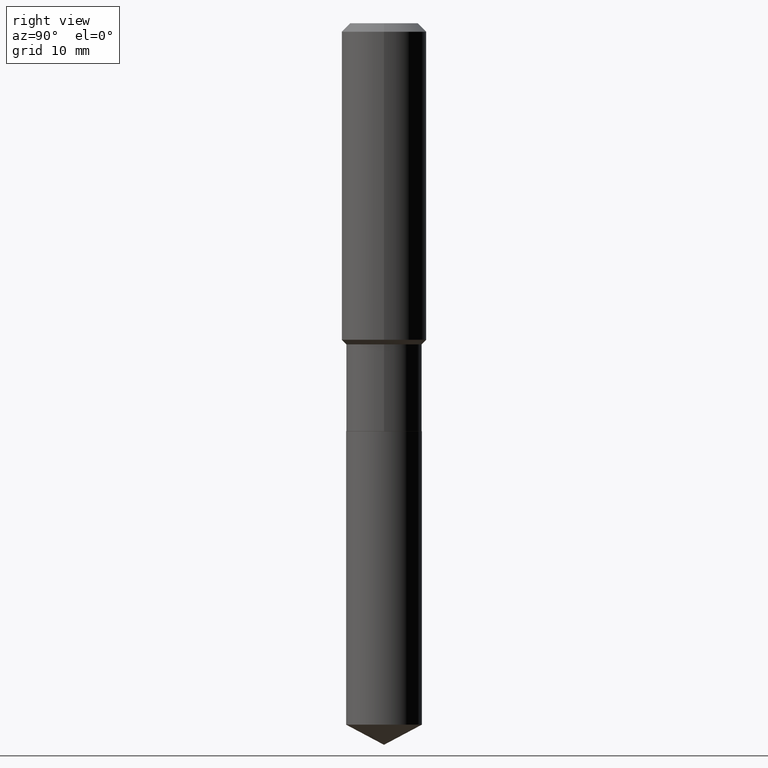
[diagram: clean part render]
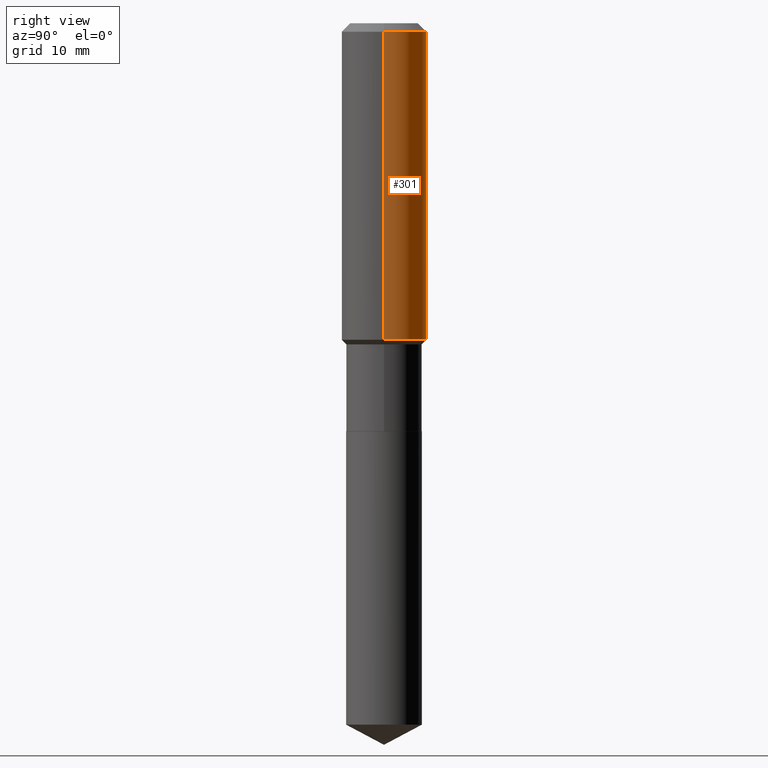
[diagram: same view with one face highlighted and labeled with its STEP entity id]
A machine part, right view. The second image highlights one B-rep face of the part: STEP entity #301.
In plain terms, the highlighted cylindrical surface (partial cylindrical patch) has radius 5.9995 mm, axis along (-0, 0, 1).
Its self-contained STEP definition (entity closure, byte-faithful):
#4 = CARTESIAN_POINT ( 'NONE',  ( 0.2362000000000001043, -1.649375784469496920E-15, 1.151752954443000508E-29 ) ) ;
#14 = ORIENTED_EDGE ( 'NONE', *, *, #428, .F. ) ;
#32 = ORIENTED_EDGE ( 'NONE', *, *, #39, .T. ) ;
#38 = VERTEX_POINT ( 'NONE', #270 ) ;
#39 = EDGE_CURVE ( 'NONE', #418, #374, #259, .T. ) ;
#57 = DIRECTION ( 'NONE',  ( -2.445468806185136877E-29, 3.491481338843145188E-15, 1.000000000000000000 ) ) ;
#89 = VECTOR ( 'NONE', #57, 39.37007874015748143 ) ;
#94 = DIRECTION ( 'NONE',  ( -2.445468806185136877E-29, 3.491481338843145188E-15, 1.000000000000000000 ) ) ;
#100 = EDGE_CURVE ( 'NONE', #427, #374, #216, .T. ) ;
#110 = CARTESIAN_POINT ( 'NONE',  ( 1.155239464041865506E-30, -1.649375784469511859E-16, -0.04724000000000028177 ) ) ;
#116 = EDGE_CURVE ( 'NONE', #38, #418, #138, .T. ) ;
#138 = CIRCLE ( 'NONE', #385, 0.2362000000000002153 ) ;
#142 = EDGE_LOOP ( 'NONE', ( #300, #32, #232, #14 ) ) ;
#144 = CARTESIAN_POINT ( 'NONE',  ( 0.2361999999999999933, -1.814313362916447440E-15, -0.04724000000000028177 ) ) ;
#179 = CARTESIAN_POINT ( 'NONE',  ( -0.2361999999999999933, -1.479376323577688976E-15, -0.04724000000000028177 ) ) ;
#185 = LINE ( 'NONE', #4, #267 ) ;
#202 = DIRECTION ( 'NONE',  ( 1.000000000000000000, -6.982962677686266711E-15, 0.000000000000000000 ) ) ;
#216 = CIRCLE ( 'NONE', #480, 0.2361999999999999933 ) ;
#220 = CYLINDRICAL_SURFACE ( 'NONE', #343, 0.2362000000000001043 ) ;
#232 = ORIENTED_EDGE ( 'NONE', *, *, #100, .F. ) ;
#244 = DIRECTION ( 'NONE',  ( 1.000000000000000000, -6.982962677686266711E-15, 0.000000000000000000 ) ) ;
#256 = FACE_OUTER_BOUND ( 'NONE', #142, .T. ) ;
#259 = LINE ( 'NONE', #479, #89 ) ;
#267 = VECTOR ( 'NONE', #94, 39.37007874015748143 ) ;
#270 = CARTESIAN_POINT ( 'NONE',  ( 0.2362000000000002153, -7.799794736908639901E-15, -1.761549999999999727 ) ) ;
#289 = DIRECTION ( 'NONE',  ( -2.445468806185136597E-29, 3.491481338843145583E-15, 1.000000000000000000 ) ) ;
#297 = DIRECTION ( 'NONE',  ( 1.000000000000000000, -6.982962677686266711E-15, 4.876176775795935793E-29 ) ) ;
#300 = ORIENTED_EDGE ( 'NONE', *, *, #116, .T. ) ;
#301 = ADVANCED_FACE ( 'NONE', ( #256 ), #220, .T. ) ;
#315 = DIRECTION ( 'NONE',  ( -2.445468806185136597E-29, 3.491481338843145583E-15, 1.000000000000000000 ) ) ;
#343 = AXIS2_PLACEMENT_3D ( 'NONE', #417, #380, #297 ) ;
#374 = VERTEX_POINT ( 'NONE', #179 ) ;
#380 = DIRECTION ( 'NONE',  ( -2.445468806185136597E-29, 3.491481338843145583E-15, 1.000000000000000000 ) ) ;
#385 = AXIS2_PLACEMENT_3D ( 'NONE', #408, #289, #244 ) ;
#408 = CARTESIAN_POINT ( 'NONE',  ( 4.307815575535426705E-29, -6.150418952439141798E-15, -1.761549999999999727 ) ) ;
#411 = CARTESIAN_POINT ( 'NONE',  ( -0.2362000000000002153, -4.472117010573783826E-15, -1.761549999999999727 ) ) ;
#417 = CARTESIAN_POINT ( 'NONE',  ( 0.000000000000000000, 0.000000000000000000, 0.000000000000000000 ) ) ;
#418 = VERTEX_POINT ( 'NONE', #411 ) ;
#427 = VERTEX_POINT ( 'NONE', #144 ) ;
#428 = EDGE_CURVE ( 'NONE', #38, #427, #185, .T. ) ;
#479 = CARTESIAN_POINT ( 'NONE',  ( -0.2362000000000001043, 1.678301941865357380E-15, -1.161852468318209317E-29 ) ) ;
#480 = AXIS2_PLACEMENT_3D ( 'NONE', #110, #315, #202 ) ;